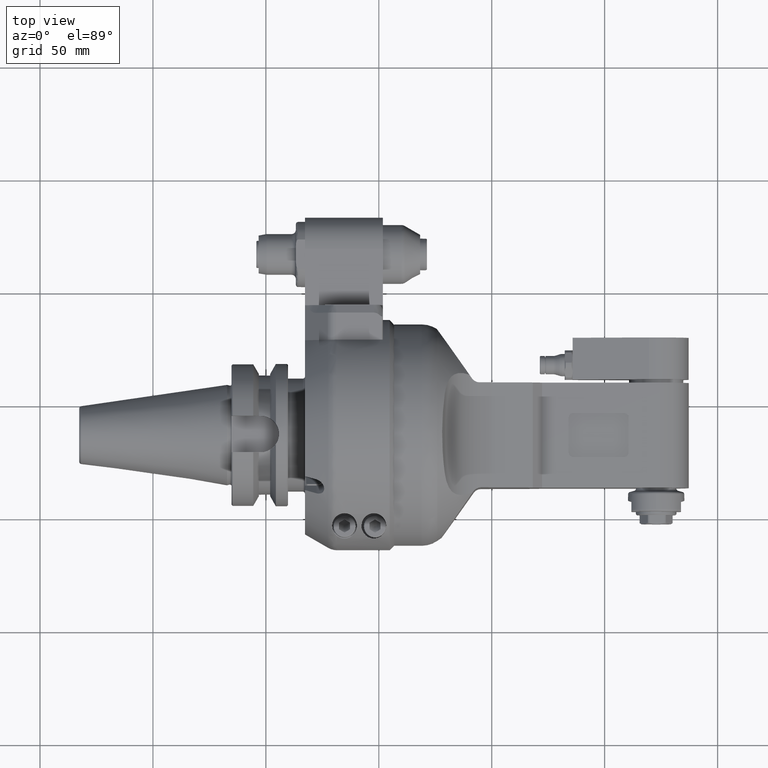
[diagram: clean part render]
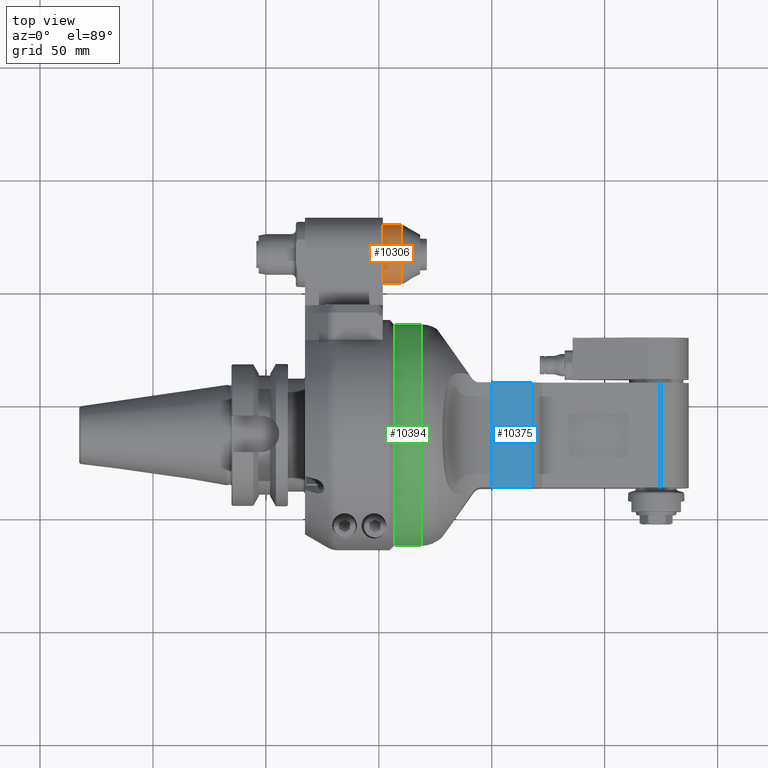
[diagram: same view with three faces highlighted in distinct colors, each labeled with its STEP entity id]
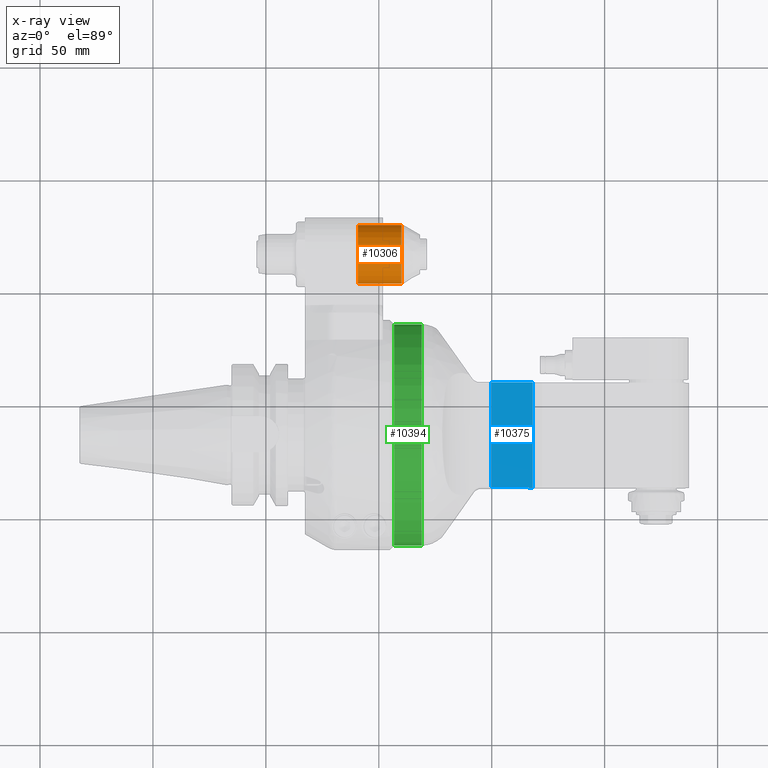
[diagram: x-ray of the same camera — body ghosted, the three highlighted faces saturated]
A machine part, top view with three faces highlighted in distinct colors.
The next image is the same camera in x-ray (body ghosted, the three faces saturated) — at least one of them is partly hidden behind the body in this view.
Their STEP definitions:

[orange] entity #10306 — the highlighted cylindrical surface (bore or boss wall) has radius 13 mm, axis along (1, 0, 0).
#985=FACE_OUTER_BOUND('',#1577,.T.);
#1577=EDGE_LOOP('',(#8180,#8181,#8182,#8183,#8184));
#2131=CIRCLE('',#11185,13.);
#2132=CIRCLE('',#11187,13.);
#2133=CIRCLE('',#11188,13.);
#2821=LINE('',#17348,#3656);
#3656=VECTOR('',#13015,13.);
#4618=VERTEX_POINT('',#17341);
#4619=VERTEX_POINT('',#17344);
#4620=VERTEX_POINT('',#17345);
#5948=EDGE_CURVE('',#4618,#4618,#2131,.T.);
#5949=EDGE_CURVE('',#4619,#4620,#2132,.T.);
#5950=EDGE_CURVE('',#4620,#4619,#2133,.T.);
#5951=EDGE_CURVE('',#4620,#4618,#2821,.T.);
#8180=ORIENTED_EDGE('',*,*,#5949,.F.);
#8181=ORIENTED_EDGE('',*,*,#5950,.F.);
#8182=ORIENTED_EDGE('',*,*,#5951,.T.);
#8183=ORIENTED_EDGE('',*,*,#5948,.F.);
#8184=ORIENTED_EDGE('',*,*,#5951,.F.);
#9956=CYLINDRICAL_SURFACE('',#11186,13.);
#10306=ADVANCED_FACE('',(#985),#9956,.T.);
#11185=AXIS2_PLACEMENT_3D('',#17342,#13007,#13008);
#11186=AXIS2_PLACEMENT_3D('',#17343,#13009,#13010);
#11187=AXIS2_PLACEMENT_3D('',#17346,#13011,#13012);
#11188=AXIS2_PLACEMENT_3D('',#17347,#13013,#13014);
#13007=DIRECTION('center_axis',(-1.,0.,0.));
#13008=DIRECTION('ref_axis',(0.,1.,0.));
#13009=DIRECTION('center_axis',(1.,0.,0.));
#13010=DIRECTION('ref_axis',(0.,1.,0.));
#13011=DIRECTION('center_axis',(1.,0.,0.));
#13012=DIRECTION('ref_axis',(0.,-1.,0.));
#13013=DIRECTION('center_axis',(1.,0.,0.));
#13014=DIRECTION('ref_axis',(0.,-1.,0.));
#13015=DIRECTION('',(-1.,0.,0.));
#17341=CARTESIAN_POINT('',(-28.,52.,-1.59204083889156E-15));
#17342=CARTESIAN_POINT('Origin',(-28.,65.,0.));
#17343=CARTESIAN_POINT('Origin',(-17.,65.,0.));
#17344=CARTESIAN_POINT('',(-8.803847577293,78.,0.));
#17345=CARTESIAN_POINT('',(-8.803847577293,52.,-1.59204083889156E-15));
#17346=CARTESIAN_POINT('Origin',(-8.803847577293,65.,0.));
#17347=CARTESIAN_POINT('Origin',(-8.803847577293,65.,0.));
#17348=CARTESIAN_POINT('',(-17.,52.,-1.59204083889156E-15));

[blue] entity #10375 — the highlighted planar face has unit normal (-0.1736, 0, -0.9848).
#517=PLANE('',#11314);
#1054=FACE_OUTER_BOUND('',#1656,.T.);
#1656=EDGE_LOOP('',(#8502,#8503,#8504,#8505));
#2882=LINE('',#58700,#3717);
#2892=LINE('',#58743,#3727);
#2894=LINE('',#58796,#3729);
#2895=LINE('',#58797,#3730);
#3717=VECTOR('',#13310,18.6166855458298);
#3727=VECTOR('',#13330,46.5);
#3729=VECTOR('',#13340,18.6166855458298);
#3730=VECTOR('',#13341,46.5);
#4719=VERTEX_POINT('',#58697);
#4720=VERTEX_POINT('',#58699);
#4732=VERTEX_POINT('',#58742);
#4739=VERTEX_POINT('',#58795);
#6103=EDGE_CURVE('',#4719,#4720,#2882,.T.);
#6118=EDGE_CURVE('',#4732,#4719,#2892,.T.);
#6126=EDGE_CURVE('',#4739,#4732,#2894,.T.);
#6127=EDGE_CURVE('',#4720,#4739,#2895,.T.);
#8502=ORIENTED_EDGE('',*,*,#6103,.F.);
#8503=ORIENTED_EDGE('',*,*,#6118,.F.);
#8504=ORIENTED_EDGE('',*,*,#6126,.F.);
#8505=ORIENTED_EDGE('',*,*,#6127,.F.);
#10375=ADVANCED_FACE('',(#1054),#517,.F.);
#11314=AXIS2_PLACEMENT_3D('',#58794,#13338,#13339);
#13310=DIRECTION('',(0.984807753012213,0.,-0.173648177666902));
#13330=DIRECTION('',(0.,1.,0.));
#13338=DIRECTION('center_axis',(-0.173648177666902,0.,-0.984807753012213));
#13339=DIRECTION('ref_axis',(-0.984807753012213,0.,0.173648177666902));
#13340=DIRECTION('',(-0.984807753012213,0.,0.173648177666902));
#13341=DIRECTION('',(0.,-1.,0.));
#58697=CARTESIAN_POINT('',(60.03829212761,23.,21.97603174258));
#58699=CARTESIAN_POINT('',(78.37214838854,23.,18.74327822335));
#58700=CARTESIAN_POINT('',(60.03829212761,23.,21.97603174258));
#58742=CARTESIAN_POINT('',(60.03829212761,-23.5,21.97603174258));
#58743=CARTESIAN_POINT('',(60.03829212761,-23.5,21.97603174258));
#58794=CARTESIAN_POINT('Origin',(82.67364817767,58.8000024,17.98480775301));
#58795=CARTESIAN_POINT('',(78.37214838854,-23.5,18.74327822335));
#58796=CARTESIAN_POINT('',(78.37214838854,-23.5,18.74327822335));
#58797=CARTESIAN_POINT('',(78.37214838854,23.,18.74327822335));

[green] entity #10394 — the highlighted cylindrical surface (bore or boss wall) has radius 49 mm, axis along (-1, -0, 0).
#1073=FACE_OUTER_BOUND('',#1678,.T.);
#1678=EDGE_LOOP('',(#8611,#8612,#8613,#8614));
#2200=CIRCLE('',#11350,49.);
#2202=CIRCLE('',#11353,49.);
#2919=LINE('',#58939,#3754);
#3754=VECTOR('',#13443,49.);
#4767=VERTEX_POINT('',#58933);
#4768=VERTEX_POINT('',#58937);
#6172=EDGE_CURVE('',#4767,#4767,#2200,.T.);
#6174=EDGE_CURVE('',#4768,#4768,#2202,.T.);
#6175=EDGE_CURVE('',#4768,#4767,#2919,.T.);
#8611=ORIENTED_EDGE('',*,*,#6174,.F.);
#8612=ORIENTED_EDGE('',*,*,#6175,.T.);
#8613=ORIENTED_EDGE('',*,*,#6172,.F.);
#8614=ORIENTED_EDGE('',*,*,#6175,.F.);
#9974=CYLINDRICAL_SURFACE('',#11352,49.);
#10394=ADVANCED_FACE('',(#1073),#9974,.T.);
#11350=AXIS2_PLACEMENT_3D('',#58934,#13435,#13436);
#11352=AXIS2_PLACEMENT_3D('',#58936,#13439,#13440);
#11353=AXIS2_PLACEMENT_3D('',#58938,#13441,#13442);
#13435=DIRECTION('center_axis',(1.,0.,0.));
#13436=DIRECTION('ref_axis',(0.,-1.,0.));
#13439=DIRECTION('center_axis',(-1.,0.,0.));
#13440=DIRECTION('ref_axis',(0.,1.,0.));
#13441=DIRECTION('center_axis',(-1.,0.,0.));
#13442=DIRECTION('ref_axis',(0.,1.,0.));
#13443=DIRECTION('',(1.,0.,0.));
#58933=CARTESIAN_POINT('',(29.21641453345,-49.,0.));
#58934=CARTESIAN_POINT('Origin',(29.21641453345,0.,0.));
#58936=CARTESIAN_POINT('Origin',(91.60163605758,0.,0.));
#58937=CARTESIAN_POINT('',(17.,-49.,6.00076931582203E-15));
#58938=CARTESIAN_POINT('Origin',(17.,0.,0.));
#58939=CARTESIAN_POINT('',(91.60163605758,-49.,6.00076931582203E-15));